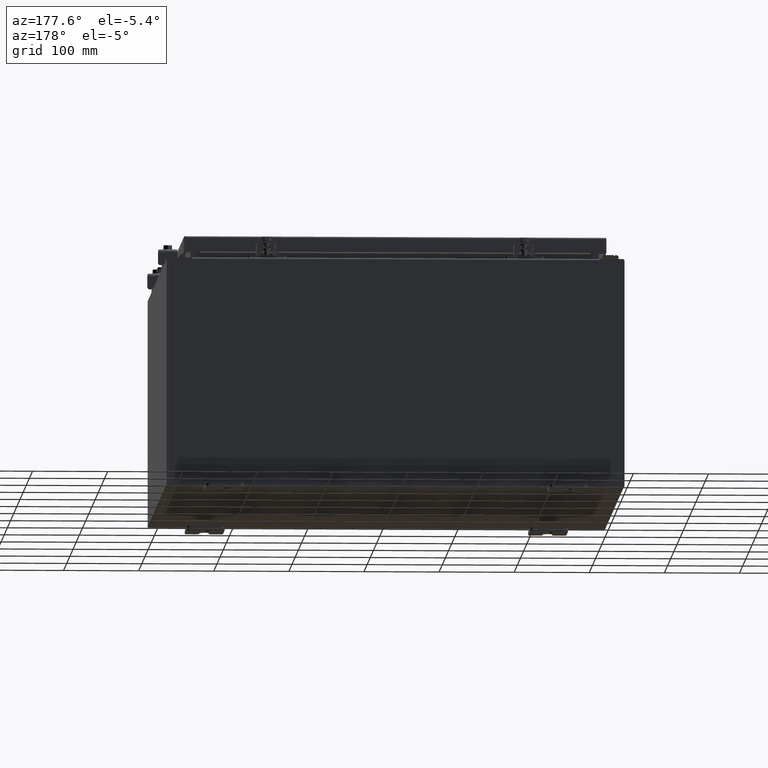
[diagram: clean part render]
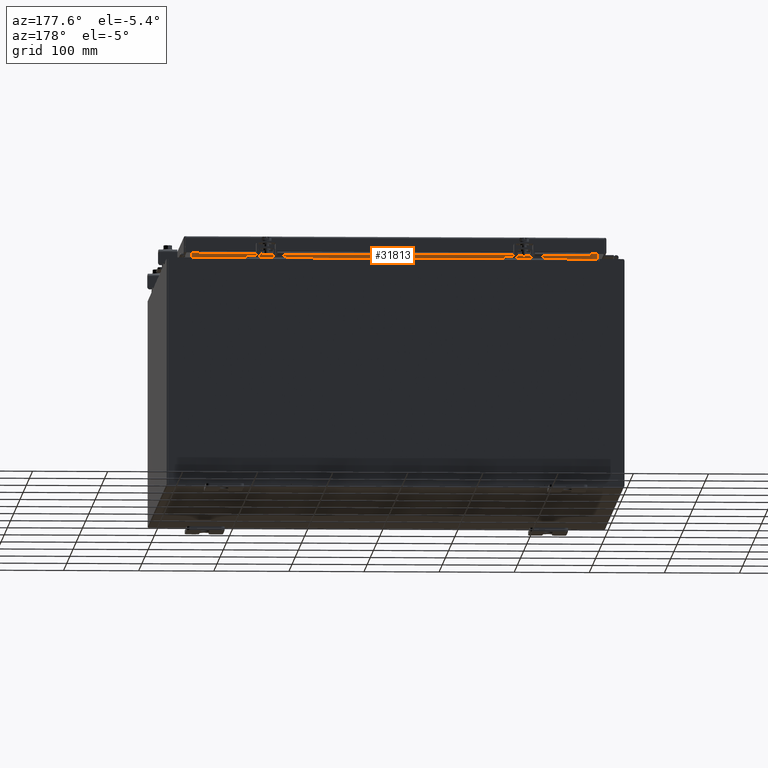
[diagram: same view with one face highlighted and labeled with its STEP entity id]
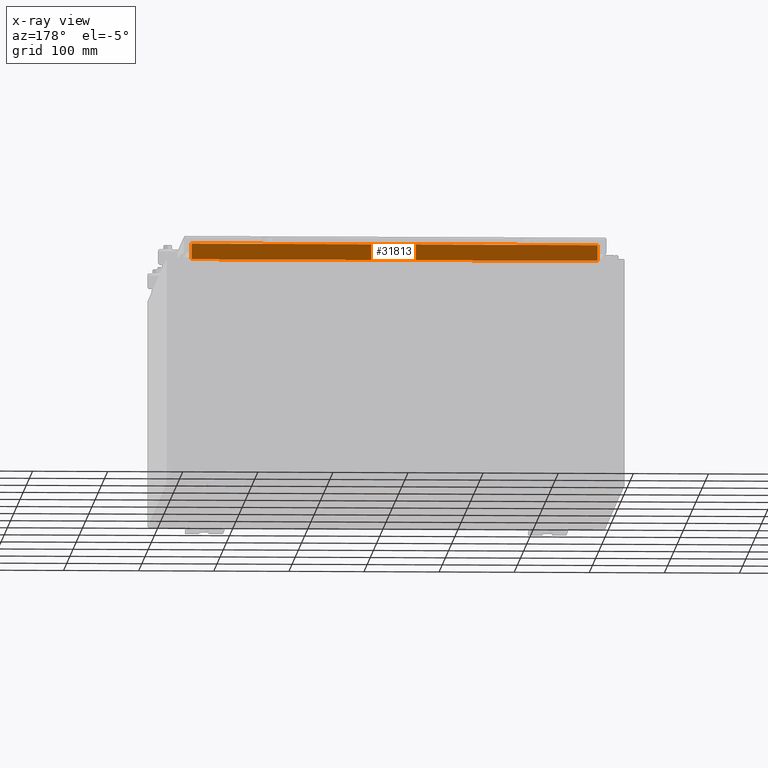
[diagram: x-ray of the same camera — body ghosted, the highlighted face saturated]
A machine part, auxiliary view. The second image highlights one B-rep face of the part: STEP entity #31813.
The next image is the same camera in x-ray: the body ghosted, the highlighted face saturated — about 0% of this face is hidden behind the body in this view.
In plain terms, the highlighted planar face has unit normal (-0, 1, 0).
Its self-contained STEP definition (entity closure, byte-faithful):
#2380 = CARTESIAN_POINT ( 'NONE',  ( -10.63720000000000200, -1.300299999999999800, 6.013000000000003500 ) ) ;
#3094 = VECTOR ( 'NONE', #19775, 39.37007874015748100 ) ;
#3243 = VECTOR ( 'NONE', #13830, 39.37007874015748100 ) ;
#4086 = CARTESIAN_POINT ( 'NONE',  ( 10.63720000000000400, -1.300299999999999800, 6.013000000000005200 ) ) ;
#5428 = DIRECTION ( 'NONE',  ( -1.000000000000000000, -0.0000000000000000000, -0.0000000000000000000 ) ) ;
#6415 = VERTEX_POINT ( 'NONE', #7253 ) ;
#6719 = VECTOR ( 'NONE', #5428, 39.37007874015748100 ) ;
#7253 = CARTESIAN_POINT ( 'NONE',  ( 10.63720000000000200, -1.300300000000000700, 6.837600000000007200 ) ) ;
#7490 = VECTOR ( 'NONE', #31585, 39.37007874015748100 ) ;
#9830 = ORIENTED_EDGE ( 'NONE', *, *, #29830, .F. ) ;
#10126 = VERTEX_POINT ( 'NONE', #17835 ) ;
#11012 = ORIENTED_EDGE ( 'NONE', *, *, #29322, .F. ) ;
#11952 = EDGE_LOOP ( 'NONE', ( #9830, #11012, #28643, #23143 ) ) ;
#12705 = FACE_OUTER_BOUND ( 'NONE', #11952, .T. ) ;
#12906 = DIRECTION ( 'NONE',  ( -9.098806308417904000E-032, 1.000000000000000000, 8.857174949738224200E-016 ) ) ;
#13830 = DIRECTION ( 'NONE',  ( -0.0000000000000000000, -8.857174949738224200E-016, 1.000000000000000000 ) ) ;
#15214 = PLANE ( 'NONE',  #23338 ) ;
#15529 = VERTEX_POINT ( 'NONE', #4086 ) ;
#16307 = LINE ( 'NONE', #2380, #3094 ) ;
#17835 = CARTESIAN_POINT ( 'NONE',  ( -10.63719999999998800, -1.300300000000000900, 6.837600000000007200 ) ) ;
#19775 = DIRECTION ( 'NONE',  ( 1.000000000000000000, 1.027280861002618300E-016, 1.027280861002618300E-016 ) ) ;
#20409 = CARTESIAN_POINT ( 'NONE',  ( 10.63719999999999600, -1.300300000000000900, 6.837600000000007200 ) ) ;
#20820 = LINE ( 'NONE', #31473, #7490 ) ;
#22367 = LINE ( 'NONE', #28999, #3243 ) ;
#23143 = ORIENTED_EDGE ( 'NONE', *, *, #31219, .F. ) ;
#23338 = AXIS2_PLACEMENT_3D ( 'NONE', #28057, #12906, #30624 ) ;
#23786 = EDGE_CURVE ( 'NONE', #15529, #6415, #22367, .T. ) ;
#23815 = CARTESIAN_POINT ( 'NONE',  ( -10.63720000000000400, -1.300299999999999800, 6.013000000000005200 ) ) ;
#25981 = LINE ( 'NONE', #20409, #6719 ) ;
#26354 = VERTEX_POINT ( 'NONE', #23815 ) ;
#28057 = CARTESIAN_POINT ( 'NONE',  ( 1.183117784283575500E-031, -1.300299999999994700, -1.151698458714456500E-015 ) ) ;
#28643 = ORIENTED_EDGE ( 'NONE', *, *, #23786, .F. ) ;
#28999 = CARTESIAN_POINT ( 'NONE',  ( 10.63720000000000200, -1.300300000000000700, 6.925300000000007100 ) ) ;
#29322 = EDGE_CURVE ( 'NONE', #6415, #10126, #25981, .T. ) ;
#29830 = EDGE_CURVE ( 'NONE', #10126, #26354, #20820, .T. ) ;
#30624 = DIRECTION ( 'NONE',  ( 0.0000000000000000000, -8.857174949738224200E-016, 1.000000000000000000 ) ) ;
#31219 = EDGE_CURVE ( 'NONE', #26354, #15529, #16307, .T. ) ;
#31473 = CARTESIAN_POINT ( 'NONE',  ( -10.63720000000000200, -1.300299999999999800, 6.000000000000003600 ) ) ;
#31585 = DIRECTION ( 'NONE',  ( -0.0000000000000000000, 8.857174949738214300E-016, -1.000000000000000000 ) ) ;
#31813 = ADVANCED_FACE ( 'NONE', ( #12705 ), #15214, .T. ) ;